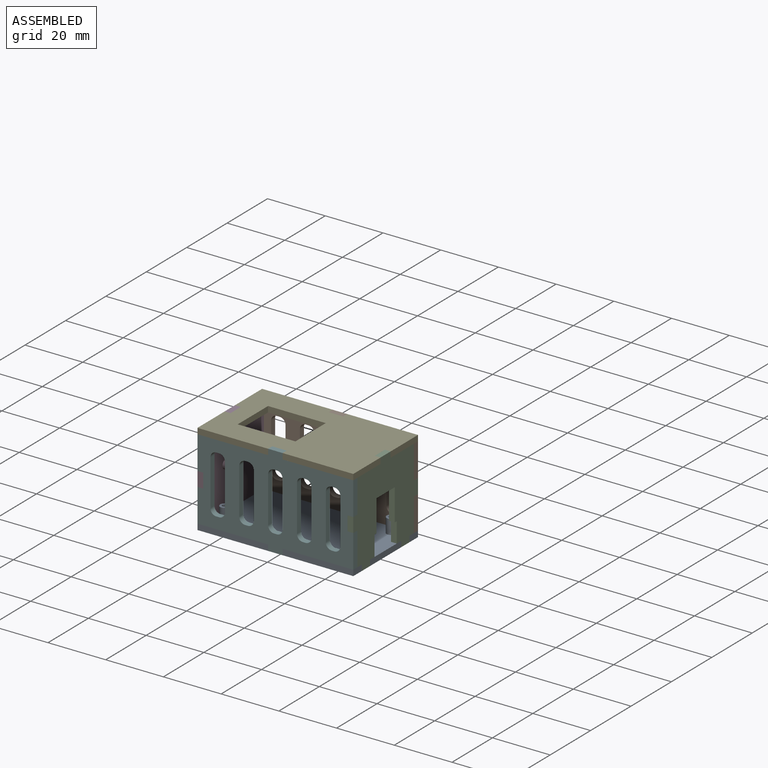
[diagram: assembled view]
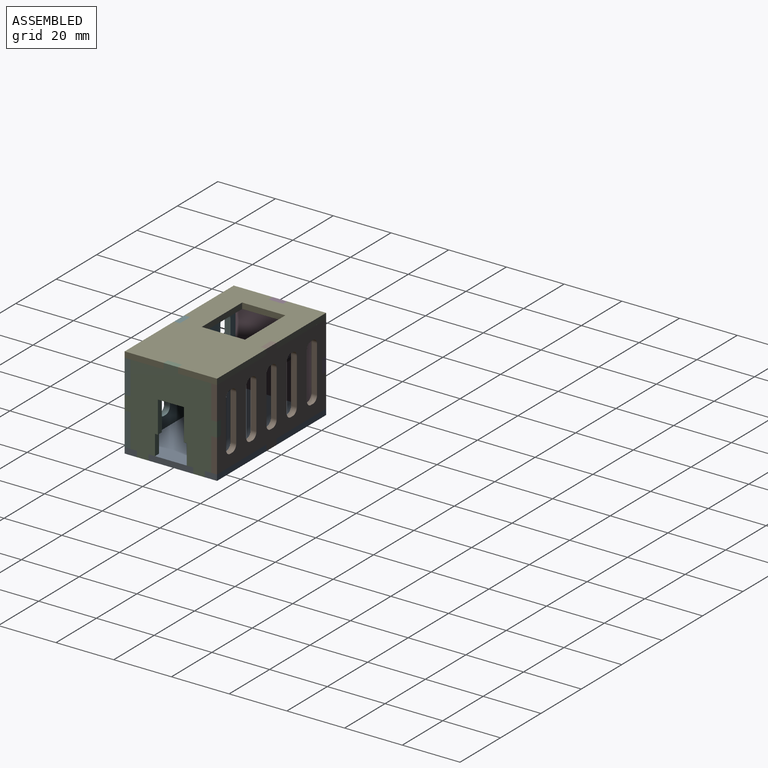
[diagram: assembled view, second angle]
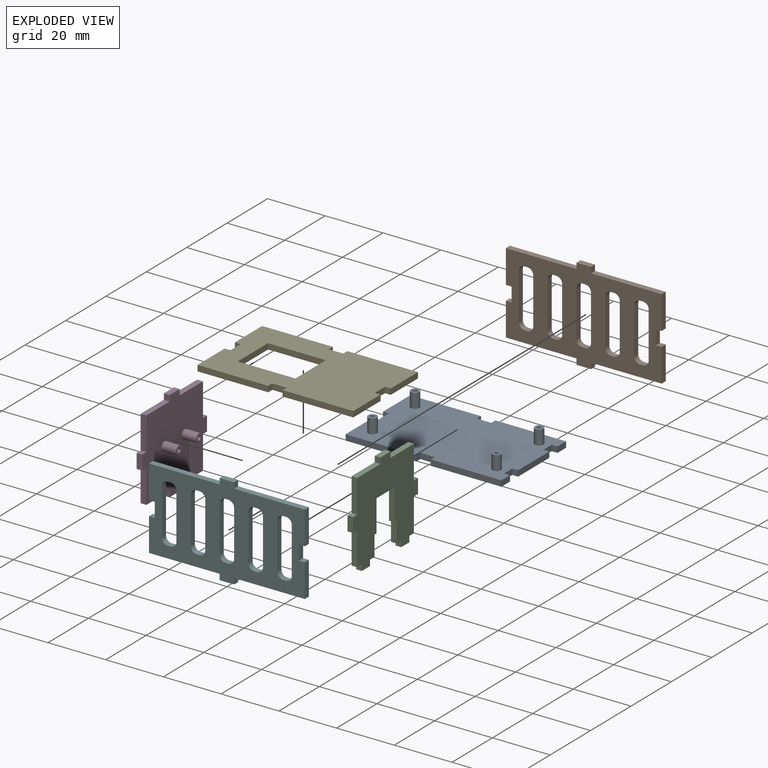
[diagram: exploded view]
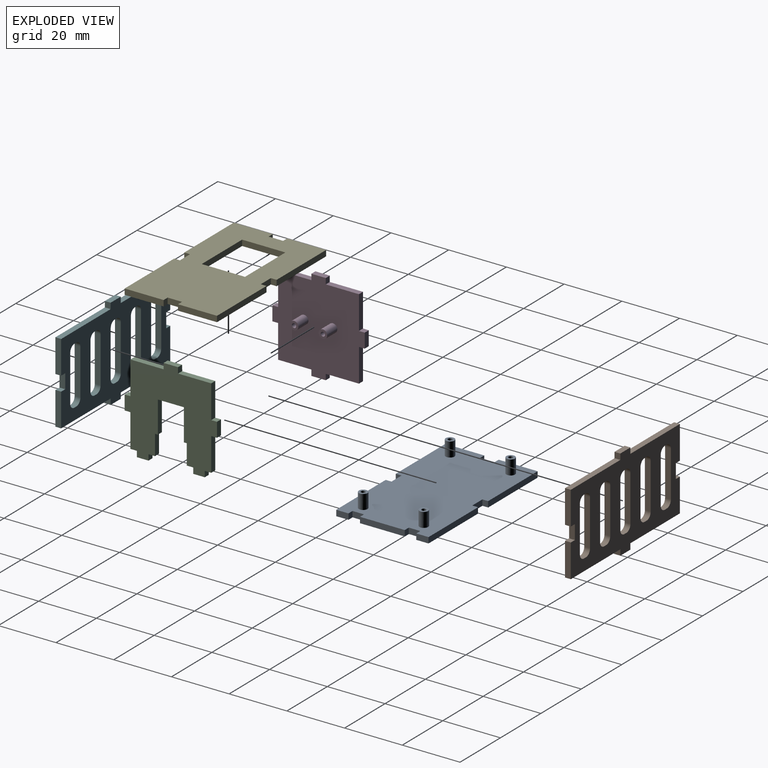
[diagram: exploded view, second angle]
ASSEMBLY  parts=6 mates=5
PART A: 42 faces, bbox 54x32x7 mm
  f0: plane 4x2mm, normal (1,0,0), area 8mm2, adj f1,f23,f24,f25
  f1: plane 2x2mm, normal (0,-1,0), area 4mm2, adj f0,f2,f24,f25
  f2: plane 4.25x2mm, normal (1,0,0), area 8.5mm2, adj f1,f3,f24,f25
  f3: plane 24.5x2mm, normal (0,1,0), area 49mm2, adj f2,f4,f24,f25
  f4: plane 2x2mm, normal (-1,0,0), area 4mm2, adj f3,f5,f24,f25
  f5: plane 5x2mm, normal (0,1,0), area 10mm2, adj f4,f6,f24,f25
  f6: plane 2x2mm, normal (1,0,0), area 4mm2, adj f5,f7,f24,f25
  f7: plane 24.5x2mm, normal (0,1,0), area 49mm2, adj f6,f8,f24,f25
  f8: plane 13.5x2mm, normal (-1,0,0), area 27mm2, adj f7,f9,f24,f25
  f9: plane 2x2mm, normal (0,-1,0), area 4mm2, adj f8,f10,f24,f25
  f10: plane 5x2mm, normal (-1,0,0), area 10mm2, adj f9,f11,f24,f25
  f11: plane 2x2mm, normal (0,1,0), area 4mm2, adj f10,f12,f24,f25
  f12: plane 13.5x2mm, normal (-1,0,0), area 27mm2, adj f11,f13,f24,f25
  f13: plane 24.5x2mm, normal (0,-1,0), area 49mm2, adj f12,f14,f24,f25
  f14: plane 2x2mm, normal (1,0,0), area 4mm2, adj f13,f15,f24,f25
  f15: plane 5x2mm, normal (0,-1,0), area 10mm2, adj f14,f16,f24,f25
  f16: plane 2x2mm, normal (-1,0,0), area 4mm2, adj f15,f17,f24,f25
  f17: plane 24.5x2mm, normal (0,-1,0), area 49mm2, adj f16,f18,f24,f25
  f18: plane 4.25x2mm, normal (1,0,0), area 8.5mm2, adj f17,f19,f24,f25
  f19: plane 2x2mm, normal (0,1,0), area 4mm2, adj f18,f20,f24,f25
  f20: plane 4x2mm, normal (1,0,0), area 8mm2, adj f19,f21,f24,f25
  f21: plane 2x2mm, normal (0,-1,0), area 4mm2, adj f20,f22,f24,f25
  f22: plane 15.5x2mm, normal (1,0,0), area 31mm2, adj f21,f23,f24,f25
  f23: plane 2x2mm, normal (0,1,0), area 4mm2, adj f0,f22,f24,f25
  f24: plane 54x32mm, normal (0,0,1), area 1653.7mm2, adj f0,f1,f2,f3,f4,f5,f6,f7
  f25: plane 54x32mm, normal (0,0,-1), area 1682mm2, adj f0,f1,f2,f3,f4,f5,f6,f7
  f26: cylinder r=1.5mm len=5mm, axis (0,0,-1), area 47.1mm2, adj f24,f27
  f27: plane 3x3mm, normal (0,0,1), area 5.3mm2, adj f26,f40
  f28: cylinder r=1.5mm len=5mm, axis (0,0,-1), area 47.1mm2, adj f24,f29
  f29: plane 3x3mm, normal (0,0,1), area 5.3mm2, adj f28,f38
  f30: cylinder r=1.5mm len=5mm, axis (0,0,-1), area 47.1mm2, adj f24,f31
  f31: plane 3x3mm, normal (0,0,1), area 5.3mm2, adj f30,f36
  f32: cylinder r=1.5mm len=5mm, axis (0,0,-1), area 47.1mm2, adj f24,f33
  f33: plane 3x3mm, normal (0,0,1), area 5.3mm2, adj f32,f34
  f34: cylinder r=0.75mm len=3mm, axis (0,0,1), area 14.1mm2, adj f33,f35
  f35: plane 1.5x1.5mm, normal (0,0,1), area 1.8mm2, adj f34
  f36: cylinder r=0.75mm len=3mm, axis (0,0,1), area 14.1mm2, adj f31,f37
  f37: plane 1.5x1.5mm, normal (0,0,1), area 1.8mm2, adj f36
  f38: cylinder r=0.75mm len=3mm, axis (0,0,1), area 14.1mm2, adj f29,f39
  f39: plane 1.5x1.5mm, normal (0,0,1), area 1.8mm2, adj f38
  f40: cylinder r=0.75mm len=3mm, axis (0,0,1), area 14.1mm2, adj f27,f41
  f41: plane 1.5x1.5mm, normal (0,0,1), area 1.8mm2, adj f40
PART B: 62 faces, bbox 54x32x2 mm
  f0: plane 24.5x2mm, normal (0,-1,0), area 49mm2, adj f45,f57,f58,f59
  f1: cylinder r=2mm len=2mm, axis (0,0,1), area 6.3mm2, adj f2,f56,f57,f58
  f2: plane 2x1mm, normal (0,1,0), area 2mm2, adj f1,f3,f57,f58
  f3: cylinder r=2mm len=2mm, axis (0,0,1), area 6.3mm2, adj f2,f4,f57,f58
  f4: plane 16x2mm, normal (1,0,0), area 32mm2, adj f3,f5,f57,f58
  f5: cylinder r=2mm len=2mm, axis (0,0,1), area 6.3mm2, adj f4,f6,f57,f58
  f6: plane 2x1mm, normal (0,-1,0), area 2mm2, adj f5,f7,f57,f58
  f7: cylinder r=2mm len=2mm, axis (0,0,1), area 6.3mm2, adj f6,f56,f57,f58
  f8: cylinder r=2mm len=2mm, axis (0,0,1), area 6.3mm2, adj f9,f51,f57,f58
  f9: plane 2x1mm, normal (0,1,0), area 2mm2, adj f8,f10,f57,f58
  f10: cylinder r=2mm len=2mm, axis (0,0,1), area 6.3mm2, adj f9,f11,f57,f58
  f11: plane 16x2mm, normal (1,0,0), area 32mm2, adj f10,f12,f57,f58
  f12: cylinder r=2mm len=2mm, axis (0,0,1), area 6.3mm2, adj f11,f13,f57,f58
  f13: plane 2x1mm, normal (0,-1,0), area 2mm2, adj f12,f14,f57,f58
  f14: cylinder r=2mm len=2mm, axis (0,0,1), area 6.3mm2, adj f13,f51,f57,f58
  f15: cylinder r=2mm len=2mm, axis (0,0,1), area 6.3mm2, adj f16,f52,f57,f58
  f16: plane 16x2mm, normal (1,0,0), area 32mm2, adj f15,f17,f57,f58
  f17: cylinder r=2mm len=2mm, axis (0,0,1), area 6.3mm2, adj f16,f18,f57,f58
  f18: plane 2x1mm, normal (0,-1,0), area 2mm2, adj f17,f19,f57,f58
  f19: cylinder r=2mm len=2mm, axis (0,0,1), area 6.3mm2, adj f18,f20,f57,f58
  f20: plane 16x2mm, normal (-1,0,0), area 32mm2, adj f19,f21,f57,f58
  f21: cylinder r=2mm len=2mm, axis (0,0,1), area 6.3mm2, adj f20,f52,f57,f58
  f22: cylinder r=2mm len=2mm, axis (0,0,1), area 6.3mm2, adj f23,f53,f57,f58
  f23: plane 16x2mm, normal (1,0,0), area 32mm2, adj f22,f24,f57,f58
  f24: cylinder r=2mm len=2mm, axis (0,0,1), area 6.3mm2, adj f23,f25,f57,f58
  f25: plane 2x1mm, normal (0,-1,0), area 2mm2, adj f24,f26,f57,f58
  f26: cylinder r=2mm len=2mm, axis (0,0,1), area 6.3mm2, adj f25,f27,f57,f58
  f27: plane 16x2mm, normal (-1,0,0), area 32mm2, adj f26,f28,f57,f58
  f28: cylinder r=2mm len=2mm, axis (0,0,1), area 6.3mm2, adj f27,f53,f57,f58
  f29: cylinder r=2mm len=2mm, axis (0,0,1), area 6.3mm2, adj f30,f54,f57,f58
  f30: plane 16x2mm, normal (-1,0,0), area 32mm2, adj f29,f31,f57,f58
  f31: cylinder r=2mm len=2mm, axis (0,0,1), area 6.3mm2, adj f30,f32,f57,f58
  f32: plane 2x1mm, normal (0,1,0), area 2mm2, adj f31,f33,f57,f58
  f33: cylinder r=2mm len=2mm, axis (0,0,1), area 6.3mm2, adj f32,f34,f57,f58
  f34: plane 16x2mm, normal (1,0,0), area 32mm2, adj f33,f35,f57,f58
  f35: cylinder r=2mm len=2mm, axis (0,0,1), area 6.3mm2, adj f34,f54,f57,f58
  f36: plane 24.5x2mm, normal (0,1,0), area 49mm2, adj f37,f55,f57,f58
  f37: plane 2x2mm, normal (1,0,0), area 4mm2, adj f36,f38,f57,f58
  f38: plane 5x2mm, normal (0,1,0), area 10mm2, adj f37,f39,f57,f58
  f39: plane 2x2mm, normal (-1,0,0), area 4mm2, adj f38,f40,f57,f58
  f40: plane 24.5x2mm, normal (0,1,0), area 49mm2, adj f39,f41,f57,f58
  f41: plane 11.5x2mm, normal (-1,0,0), area 23mm2, adj f40,f42,f57,f58
  f42: plane 2x2mm, normal (0,-1,0), area 4mm2, adj f41,f43,f57,f58
  f43: plane 5x2mm, normal (-1,0,0), area 10mm2, adj f42,f44,f57,f58
  f44: plane 2x2mm, normal (0,1,0), area 4mm2, adj f43,f45,f57,f58
  f45: plane 11.5x2mm, normal (-1,0,0), area 23mm2, adj f0,f44,f57,f58
  f46: plane 24.5x2mm, normal (0,-1,0), area 49mm2, adj f47,f57,f58,f60
  f47: plane 11.5x2mm, normal (1,0,0), area 23mm2, adj f46,f48,f57,f58
  f48: plane 2x2mm, normal (0,1,0), area 4mm2, adj f47,f49,f57,f58
  f49: plane 5x2mm, normal (1,0,0), area 10mm2, adj f48,f50,f57,f58
  f50: plane 2x2mm, normal (0,-1,0), area 4mm2, adj f49,f55,f57,f58
  f51: plane 16x2mm, normal (-1,0,0), area 32mm2, adj f8,f14,f57,f58
  f52: plane 2x1mm, normal (0,1,0), area 2mm2, adj f15,f21,f57,f58
  f53: plane 2x1mm, normal (0,1,0), area 2mm2, adj f22,f28,f57,f58
  f54: plane 2x1mm, normal (0,-1,0), area 2mm2, adj f29,f35,f57,f58
  f55: plane 11.5x2mm, normal (1,0,0), area 23mm2, adj f36,f50,f57,f58
  f56: plane 16x2mm, normal (-1,0,0), area 32mm2, adj f1,f7,f57,f58
  f57: plane 54x32mm, normal (0,0,-1), area 1029.2mm2, adj f0,f1,f2,f3,f4,f5,f6,f7
  f58: plane 54x32mm, normal (0,0,1), area 1029.2mm2, adj f0,f1,f2,f3,f4,f5,f6,f7
  f59: plane 2x2mm, normal (-1,0,0), area 4mm2, adj f0,f57,f58,f61
  f60: plane 2x2mm, normal (1,0,0), area 4mm2, adj f46,f57,f58,f61
  f61: plane 5x2mm, normal (0,-1,0), area 10mm2, adj f57,f58,f59,f60
PART C: 34 faces, bbox 32x32x2 mm
  f0: plane 2.25x2mm, normal (-1,0,0), area 4.5mm2, adj f16,f26,f27,f31
  f1: plane 2.25x2mm, normal (-1,0,0), area 4.5mm2, adj f8,f26,f27,f28
  f2: plane 11.5x2mm, normal (0,1,0), area 23mm2, adj f3,f25,f26,f27
  f3: plane 2x2mm, normal (1,0,0), area 4mm2, adj f2,f4,f26,f27
  f4: plane 5x2mm, normal (0,1,0), area 10mm2, adj f3,f5,f26,f27
  f5: plane 2x2mm, normal (-1,0,0), area 4mm2, adj f4,f6,f26,f27
  f6: plane 11.5x2mm, normal (0,1,0), area 23mm2, adj f5,f7,f26,f27
  f7: plane 2.25x2mm, normal (-1,0,0), area 4.5mm2, adj f6,f26,f27,f29
  f8: plane 7x2mm, normal (0,-1,0), area 14mm2, adj f1,f9,f26,f27
  f9: plane 2x1mm, normal (-1,0,0), area 2mm2, adj f8,f10,f26,f27
  f10: plane 11x2mm, normal (0,-1,0), area 22mm2, adj f9,f11,f26,f27
  f11: plane 9x2mm, normal (-1,0,0), area 18mm2, adj f10,f12,f26,f27
  f12: plane 11x2mm, normal (0,1,0), area 22mm2, adj f11,f13,f26,f27
  f13: plane 2x1mm, normal (-1,0,0), area 2mm2, adj f12,f14,f26,f27
  f14: plane 7x2mm, normal (0,1,0), area 14mm2, adj f13,f15,f26,f27
  f15: plane 2.25x2mm, normal (-1,0,0), area 4.5mm2, adj f14,f26,f27,f32
  f16: plane 11.5x2mm, normal (0,-1,0), area 23mm2, adj f0,f17,f26,f27
  f17: plane 2x2mm, normal (-1,0,0), area 4mm2, adj f16,f18,f26,f27
  f18: plane 5x2mm, normal (0,-1,0), area 10mm2, adj f17,f19,f26,f27
  f19: plane 2x2mm, normal (1,0,0), area 4mm2, adj f18,f20,f26,f27
  f20: plane 11.5x2mm, normal (0,-1,0), area 23mm2, adj f19,f21,f26,f27
  f21: plane 11.5x2mm, normal (1,0,0), area 23mm2, adj f20,f22,f26,f27
  f22: plane 2x2mm, normal (0,-1,0), area 4mm2, adj f21,f23,f26,f27
  f23: plane 5x2mm, normal (1,0,0), area 10mm2, adj f22,f24,f26,f27
  f24: plane 2x2mm, normal (0,1,0), area 4mm2, adj f23,f25,f26,f27
  f25: plane 11.5x2mm, normal (1,0,0), area 23mm2, adj f2,f24,f26,f27
  f26: plane 32x32mm, normal (0,0,1), area 654mm2, adj f0,f1,f2,f3,f4,f5,f6,f7
  f27: plane 32x32mm, normal (0,0,-1), area 654mm2, adj f0,f1,f2,f3,f4,f5,f6,f7
  f28: plane 2x2mm, normal (0,-1,0), area 4mm2, adj f1,f26,f27,f30
  f29: plane 2x2mm, normal (0,1,0), area 4mm2, adj f7,f26,f27,f30
  f30: plane 4x2mm, normal (-1,0,0), area 8mm2, adj f26,f27,f28,f29
  f31: plane 2x2mm, normal (0,-1,0), area 4mm2, adj f0,f26,f27,f33
  f32: plane 2x2mm, normal (0,1,0), area 4mm2, adj f15,f26,f27,f33
  f33: plane 4x2mm, normal (-1,0,0), area 8mm2, adj f26,f27,f31,f32
PART D: 30 faces, bbox 32x32x7 mm
  f0: plane 11.5x2mm, normal (1,0,0), area 23mm2, adj f16,f17,f18,f28
  f1: plane 11.5x2mm, normal (1,0,0), area 23mm2, adj f2,f17,f18,f27
  f2: plane 11.5x2mm, normal (0,1,0), area 23mm2, adj f1,f3,f17,f18
  f3: plane 2x2mm, normal (1,0,0), area 4mm2, adj f2,f4,f17,f18
  f4: plane 5x2mm, normal (0,1,0), area 10mm2, adj f3,f5,f17,f18
  f5: plane 2x2mm, normal (-1,0,0), area 4mm2, adj f4,f6,f17,f18
  f6: plane 11.5x2mm, normal (0,1,0), area 23mm2, adj f5,f7,f17,f18
  f7: plane 11.5x2mm, normal (-1,0,0), area 23mm2, adj f6,f8,f17,f18
  f8: plane 2x2mm, normal (0,1,0), area 4mm2, adj f7,f9,f17,f18
  f9: plane 5x2mm, normal (-1,0,0), area 10mm2, adj f8,f10,f17,f18
  f10: plane 2x2mm, normal (0,-1,0), area 4mm2, adj f9,f11,f17,f18
  f11: plane 11.5x2mm, normal (-1,0,0), area 23mm2, adj f10,f12,f17,f18
  f12: plane 11.5x2mm, normal (0,-1,0), area 23mm2, adj f11,f13,f17,f18
  f13: plane 2x2mm, normal (-1,0,0), area 4mm2, adj f12,f14,f17,f18
  f14: plane 5x2mm, normal (0,-1,0), area 10mm2, adj f13,f15,f17,f18
  f15: plane 2x2mm, normal (1,0,0), area 4mm2, adj f14,f16,f17,f18
  f16: plane 11.5x2mm, normal (0,-1,0), area 23mm2, adj f0,f15,f17,f18
  f17: plane 32x32mm, normal (0,0,1), area 809.9mm2, adj f0,f1,f2,f3,f4,f5,f6,f7
  f18: plane 32x32mm, normal (0,0,-1), area 824mm2, adj f0,f1,f2,f3,f4,f5,f6,f7
  f19: cylinder r=0.75mm len=3mm, axis (0,0,-1), area 14.1mm2, adj f21,f25
  f20: cylinder r=1.5mm len=5mm, axis (0,0,-1), area 47.1mm2, adj f17,f21
  f21: plane 3x3mm, normal (0,0,1), area 5.3mm2, adj f19,f20
  f22: cylinder r=0.75mm len=3mm, axis (0,0,-1), area 14.1mm2, adj f24,f26
  f23: cylinder r=1.5mm len=5mm, axis (0,0,-1), area 47.1mm2, adj f17,f24
  f24: plane 3x3mm, normal (0,0,1), area 5.3mm2, adj f22,f23
  f25: plane 1.5x1.5mm, normal (0,0,1), area 1.8mm2, adj f19
  f26: plane 1.5x1.5mm, normal (0,0,1), area 1.8mm2, adj f22
  f27: plane 2x2mm, normal (0,1,0), area 4mm2, adj f1,f17,f18,f29
  f28: plane 2x2mm, normal (0,-1,0), area 4mm2, adj f0,f17,f18,f29
  f29: plane 5x2mm, normal (1,0,0), area 10mm2, adj f17,f18,f27,f28
PART E: 26 faces, bbox 54x32x2 mm
  f0: plane 15x2mm, normal (1,0,0), area 30mm2, adj f1,f23,f24,f25
  f1: plane 20x2mm, normal (0,-1,0), area 40mm2, adj f0,f2,f24,f25
  f2: plane 15x2mm, normal (-1,0,0), area 30mm2, adj f1,f23,f24,f25
  f3: plane 13.5x2mm, normal (1,0,0), area 27mm2, adj f4,f22,f24,f25
  f4: plane 2x2mm, normal (0,1,0), area 4mm2, adj f3,f5,f24,f25
  f5: plane 5x2mm, normal (1,0,0), area 10mm2, adj f4,f6,f24,f25
  f6: plane 2x2mm, normal (0,-1,0), area 4mm2, adj f5,f7,f24,f25
  f7: plane 13.5x2mm, normal (1,0,0), area 27mm2, adj f6,f8,f24,f25
  f8: plane 24.5x2mm, normal (0,1,0), area 49mm2, adj f7,f9,f24,f25
  f9: plane 2x2mm, normal (-1,0,0), area 4mm2, adj f8,f10,f24,f25
  f10: plane 5x2mm, normal (0,1,0), area 10mm2, adj f9,f11,f24,f25
  f11: plane 2x2mm, normal (1,0,0), area 4mm2, adj f10,f12,f24,f25
  f12: plane 24.5x2mm, normal (0,1,0), area 49mm2, adj f11,f13,f24,f25
  f13: plane 13.5x2mm, normal (-1,0,0), area 27mm2, adj f12,f14,f24,f25
  f14: plane 2x2mm, normal (0,-1,0), area 4mm2, adj f13,f15,f24,f25
  f15: plane 5x2mm, normal (-1,0,0), area 10mm2, adj f14,f16,f24,f25
  f16: plane 2x2mm, normal (0,1,0), area 4mm2, adj f15,f17,f24,f25
  f17: plane 13.5x2mm, normal (-1,0,0), area 27mm2, adj f16,f18,f24,f25
  f18: plane 24.5x2mm, normal (0,-1,0), area 49mm2, adj f17,f19,f24,f25
  f19: plane 2x2mm, normal (1,0,0), area 4mm2, adj f18,f20,f24,f25
  f20: plane 5x2mm, normal (0,-1,0), area 10mm2, adj f19,f21,f24,f25
  f21: plane 2x2mm, normal (-1,0,0), area 4mm2, adj f20,f22,f24,f25
  f22: plane 24.5x2mm, normal (0,-1,0), area 49mm2, adj f3,f21,f24,f25
  f23: plane 20x2mm, normal (0,1,0), area 40mm2, adj f0,f2,f24,f25
  f24: plane 54x32mm, normal (0,0,1), area 1388mm2, adj f0,f1,f2,f3,f4,f5,f6,f7
  f25: plane 54x32mm, normal (0,0,-1), area 1388mm2, adj f0,f1,f2,f3,f4,f5,f6,f7
PART F: 62 faces, bbox 54x32x2 mm
  f0: plane 24.5x2mm, normal (0,1,0), area 49mm2, adj f49,f57,f58,f60
  f1: cylinder r=2mm len=2mm, axis (0,0,-1), area 6.3mm2, adj f2,f56,f57,f58
  f2: plane 16x2mm, normal (-1,0,0), area 32mm2, adj f1,f3,f57,f58
  f3: cylinder r=2mm len=2mm, axis (0,0,-1), area 6.3mm2, adj f2,f4,f57,f58
  f4: plane 2x1mm, normal (0,1,0), area 2mm2, adj f3,f5,f57,f58
  f5: cylinder r=2mm len=2mm, axis (0,0,-1), area 6.3mm2, adj f4,f6,f57,f58
  f6: plane 16x2mm, normal (1,0,0), area 32mm2, adj f5,f7,f57,f58
  f7: cylinder r=2mm len=2mm, axis (0,0,-1), area 6.3mm2, adj f6,f56,f57,f58
  f8: cylinder r=2mm len=2mm, axis (0,0,-1), area 6.3mm2, adj f9,f51,f57,f58
  f9: plane 16x2mm, normal (1,0,0), area 32mm2, adj f8,f10,f57,f58
  f10: cylinder r=2mm len=2mm, axis (0,0,-1), area 6.3mm2, adj f9,f11,f57,f58
  f11: plane 2x1mm, normal (0,-1,0), area 2mm2, adj f10,f12,f57,f58
  f12: cylinder r=2mm len=2mm, axis (0,0,-1), area 6.3mm2, adj f11,f13,f57,f58
  f13: plane 16x2mm, normal (-1,0,0), area 32mm2, adj f12,f14,f57,f58
  f14: cylinder r=2mm len=2mm, axis (0,0,-1), area 6.3mm2, adj f13,f51,f57,f58
  f15: cylinder r=2mm len=2mm, axis (0,0,-1), area 6.3mm2, adj f16,f52,f57,f58
  f16: plane 16x2mm, normal (1,0,0), area 32mm2, adj f15,f17,f57,f58
  f17: cylinder r=2mm len=2mm, axis (0,0,-1), area 6.3mm2, adj f16,f18,f57,f58
  f18: plane 2x1mm, normal (0,-1,0), area 2mm2, adj f17,f19,f57,f58
  f19: cylinder r=2mm len=2mm, axis (0,0,-1), area 6.3mm2, adj f18,f20,f57,f58
  f20: plane 16x2mm, normal (-1,0,0), area 32mm2, adj f19,f21,f57,f58
  f21: cylinder r=2mm len=2mm, axis (0,0,-1), area 6.3mm2, adj f20,f52,f57,f58
  f22: cylinder r=2mm len=2mm, axis (0,0,-1), area 6.3mm2, adj f23,f53,f57,f58
  f23: plane 2x1mm, normal (0,1,0), area 2mm2, adj f22,f24,f57,f58
  f24: cylinder r=2mm len=2mm, axis (0,0,-1), area 6.3mm2, adj f23,f25,f57,f58
  f25: plane 16x2mm, normal (1,0,0), area 32mm2, adj f24,f26,f57,f58
  f26: cylinder r=2mm len=2mm, axis (0,0,-1), area 6.3mm2, adj f25,f27,f57,f58
  f27: plane 2x1mm, normal (0,-1,0), area 2mm2, adj f26,f28,f57,f58
  f28: cylinder r=2mm len=2mm, axis (0,0,-1), area 6.3mm2, adj f27,f53,f57,f58
  f29: cylinder r=2mm len=2mm, axis (0,0,-1), area 6.3mm2, adj f30,f54,f57,f58
  f30: plane 2x1mm, normal (0,1,0), area 2mm2, adj f29,f31,f57,f58
  f31: cylinder r=2mm len=2mm, axis (0,0,-1), area 6.3mm2, adj f30,f32,f57,f58
  f32: plane 16x2mm, normal (1,0,0), area 32mm2, adj f31,f33,f57,f58
  f33: cylinder r=2mm len=2mm, axis (0,0,-1), area 6.3mm2, adj f32,f34,f57,f58
  f34: plane 2x1mm, normal (0,-1,0), area 2mm2, adj f33,f35,f57,f58
  f35: cylinder r=2mm len=2mm, axis (0,0,-1), area 6.3mm2, adj f34,f54,f57,f58
  f36: plane 2x2mm, normal (0,-1,0), area 4mm2, adj f37,f55,f57,f58
  f37: plane 5x2mm, normal (-1,0,0), area 10mm2, adj f36,f38,f57,f58
  f38: plane 2x2mm, normal (0,1,0), area 4mm2, adj f37,f39,f57,f58
  f39: plane 11.5x2mm, normal (-1,0,0), area 23mm2, adj f38,f40,f57,f58
  f40: plane 24.5x2mm, normal (0,-1,0), area 49mm2, adj f39,f41,f57,f58
  f41: plane 2x2mm, normal (-1,0,0), area 4mm2, adj f40,f42,f57,f58
  f42: plane 5x2mm, normal (0,-1,0), area 10mm2, adj f41,f43,f57,f58
  f43: plane 2x2mm, normal (1,0,0), area 4mm2, adj f42,f44,f57,f58
  f44: plane 24.5x2mm, normal (0,-1,0), area 49mm2, adj f43,f45,f57,f58
  f45: plane 11.5x2mm, normal (1,0,0), area 23mm2, adj f44,f46,f57,f58
  f46: plane 2x2mm, normal (0,1,0), area 4mm2, adj f45,f47,f57,f58
  f47: plane 5x2mm, normal (1,0,0), area 10mm2, adj f46,f48,f57,f58
  f48: plane 2x2mm, normal (0,-1,0), area 4mm2, adj f47,f49,f57,f58
  f49: plane 11.5x2mm, normal (1,0,0), area 23mm2, adj f0,f48,f57,f58
  f50: plane 24.5x2mm, normal (0,1,0), area 49mm2, adj f55,f57,f58,f59
  f51: plane 2x1mm, normal (0,1,0), area 2mm2, adj f8,f14,f57,f58
  f52: plane 2x1mm, normal (0,1,0), area 2mm2, adj f15,f21,f57,f58
  f53: plane 16x2mm, normal (-1,0,0), area 32mm2, adj f22,f28,f57,f58
  f54: plane 16x2mm, normal (-1,0,0), area 32mm2, adj f29,f35,f57,f58
  f55: plane 11.5x2mm, normal (-1,0,0), area 23mm2, adj f36,f50,f57,f58
  f56: plane 2x1mm, normal (0,-1,0), area 2mm2, adj f1,f7,f57,f58
  f57: plane 54x32mm, normal (0,0,1), area 1029.2mm2, adj f0,f1,f2,f3,f4,f5,f6,f7
  f58: plane 54x32mm, normal (0,0,-1), area 1029.2mm2, adj f0,f1,f2,f3,f4,f5,f6,f7
  f59: plane 2x2mm, normal (-1,0,0), area 4mm2, adj f50,f57,f58,f61
  f60: plane 2x2mm, normal (1,0,0), area 4mm2, adj f0,f57,f58,f61
  f61: plane 5x2mm, normal (0,1,0), area 10mm2, adj f57,f58,f59,f60
PLACE A t=(66.06,-117.65,-2.55)mm
PLACE B rot(axis=(1,0,0),90deg) t=(65.98,14.44,-139.18)mm
PLACE C rot(axis=(0,-1,0),90deg) t=(26.67,-115.65,28.27)mm
PLACE D rot(axis=(0,1,0),90deg) t=(-27.33,-115.62,-111.69)mm
PLACE E t=(67.02,-189.56,27.45)mm
PLACE F rot(axis=(-1,0,0),90deg) t=(65.98,-15.56,95.43)mm
MATE planar F.f57 <-> A.f15  axis (0,1,0) through (-0.33,-13.56,-2.55)mm
MATE planar E.f24 <-> C.f23  axis (0,0,1) through (24.67,0.44,29.45)mm
MATE planar D.f17 <-> A.f10  axis (1,0,0) through (-25.33,0.44,-2.55)mm
MATE planar B.f58 <-> A.f5  axis (0,-1,0) through (-0.33,14.44,-2.55)mm
MATE planar C.f26 <-> A.f20  axis (-1,0,0) through (24.67,-9.31,-2.55)mm
